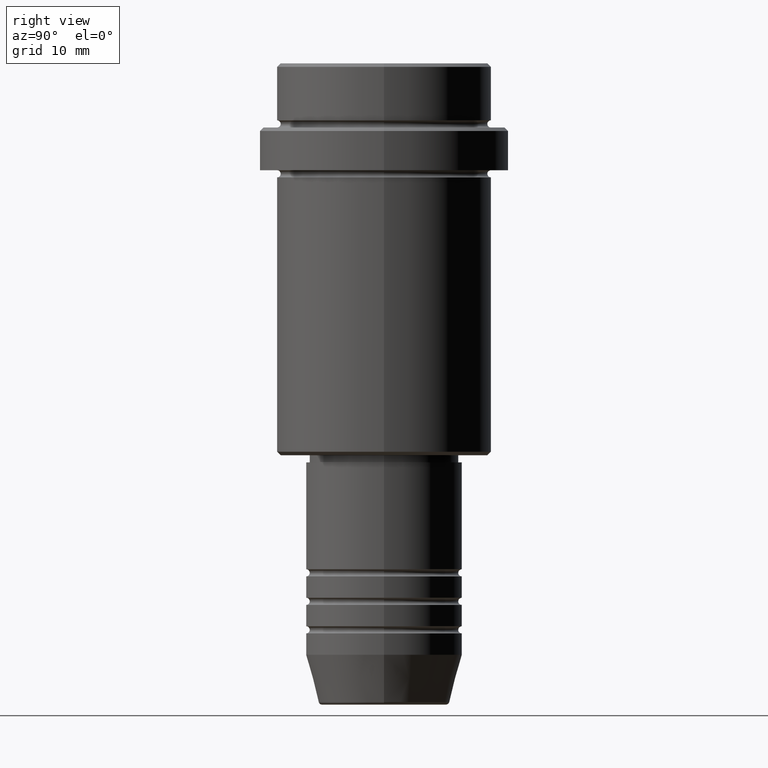
[diagram: clean part render]
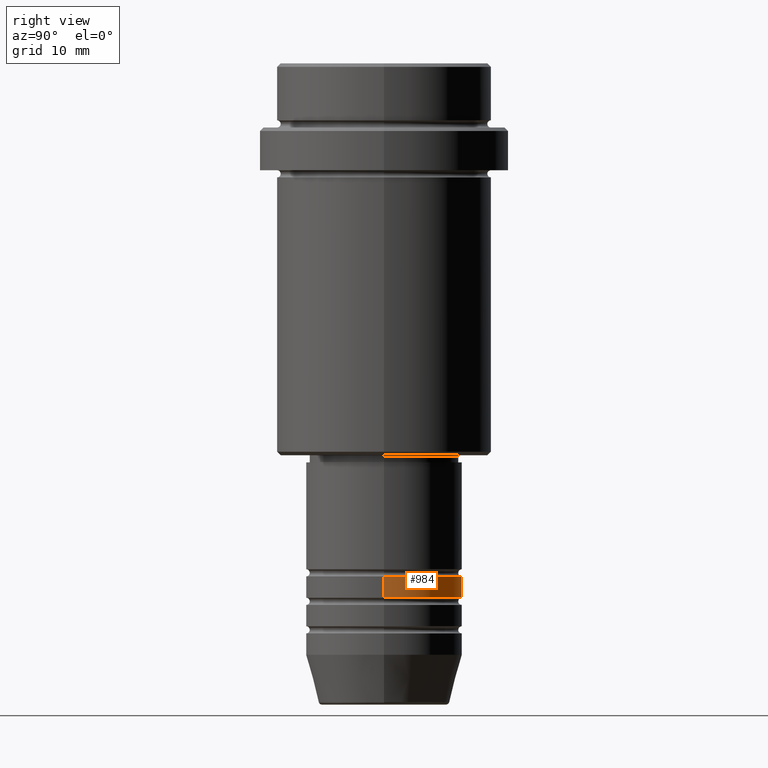
[diagram: same view with one face highlighted and labeled with its STEP entity id]
A machine part, right view. The second image highlights one B-rep face of the part: STEP entity #984.
In plain terms, the highlighted cylindrical surface (partial cylindrical patch) has radius 11 mm, axis along (-0, -0, 1).
Its self-contained STEP definition (entity closure, byte-faithful):
#69 = CARTESIAN_POINT ( 'NONE',  ( 0.000000000000000000, 0.000000000000000000, 0.000000000000000000 ) ) ;
#85 = CIRCLE ( 'NONE', #670, 11.00000000000000000 ) ;
#86 = DIRECTION ( 'NONE',  ( -0.000000000000000000, -0.000000000000000000, 1.000000000000000000 ) ) ;
#132 = VERTEX_POINT ( 'NONE', #948 ) ;
#183 = VERTEX_POINT ( 'NONE', #1317 ) ;
#204 = DIRECTION ( 'NONE',  ( -0.000000000000000000, -0.000000000000000000, 1.000000000000000000 ) ) ;
#212 = ORIENTED_EDGE ( 'NONE', *, *, #734, .T. ) ;
#259 = AXIS2_PLACEMENT_3D ( 'NONE', #1386, #204, #401 ) ;
#273 = DIRECTION ( 'NONE',  ( -0.000000000000000000, -0.000000000000000000, 1.000000000000000000 ) ) ;
#283 = CARTESIAN_POINT ( 'NONE',  ( 0.000000000000000000, 0.000000000000000000, -71.99999999999990052 ) ) ;
#307 = ORIENTED_EDGE ( 'NONE', *, *, #1241, .F. ) ;
#360 = CARTESIAN_POINT ( 'NONE',  ( 11.00000000000000000, 0.000000000000000000, 0.000000000000000000 ) ) ;
#401 = DIRECTION ( 'NONE',  ( 1.000000000000000000, 0.000000000000000000, 0.000000000000000000 ) ) ;
#532 = VECTOR ( 'NONE', #86, 1000.000000000000000 ) ;
#670 = AXIS2_PLACEMENT_3D ( 'NONE', #283, #729, #852 ) ;
#713 = DIRECTION ( 'NONE',  ( 1.000000000000000000, 0.000000000000000000, 0.000000000000000000 ) ) ;
#729 = DIRECTION ( 'NONE',  ( -0.000000000000000000, -0.000000000000000000, 1.000000000000000000 ) ) ;
#734 = EDGE_CURVE ( 'NONE', #1276, #1158, #1081, .T. ) ;
#846 = FACE_OUTER_BOUND ( 'NONE', #916, .T. ) ;
#852 = DIRECTION ( 'NONE',  ( 1.000000000000000000, 0.000000000000000000, 0.000000000000000000 ) ) ;
#868 = CARTESIAN_POINT ( 'NONE',  ( -11.00000000000000000, 1.347111479062088405E-15, 0.000000000000000000 ) ) ;
#916 = EDGE_LOOP ( 'NONE', ( #1302, #212, #1274, #307 ) ) ;
#941 = EDGE_CURVE ( 'NONE', #183, #1158, #85, .T. ) ;
#948 = CARTESIAN_POINT ( 'NONE',  ( 11.00000000000000000, 0.000000000000000000, -74.99999999999990052 ) ) ;
#984 = ADVANCED_FACE ( 'NONE', ( #846 ), #1143, .T. ) ;
#1024 = LINE ( 'NONE', #360, #1144 ) ;
#1046 = CARTESIAN_POINT ( 'NONE',  ( -11.00000000000000000, 1.347111479062088405E-15, -74.99999999999990052 ) ) ;
#1054 = CARTESIAN_POINT ( 'NONE',  ( -11.00000000000000000, 1.347111479062088405E-15, -71.99999999999990052 ) ) ;
#1081 = LINE ( 'NONE', #868, #532 ) ;
#1143 = CYLINDRICAL_SURFACE ( 'NONE', #1193, 11.00000000000000000 ) ;
#1144 = VECTOR ( 'NONE', #273, 1000.000000000000000 ) ;
#1158 = VERTEX_POINT ( 'NONE', #1054 ) ;
#1193 = AXIS2_PLACEMENT_3D ( 'NONE', #69, #1283, #713 ) ;
#1241 = EDGE_CURVE ( 'NONE', #132, #183, #1024, .T. ) ;
#1274 = ORIENTED_EDGE ( 'NONE', *, *, #941, .F. ) ;
#1276 = VERTEX_POINT ( 'NONE', #1046 ) ;
#1283 = DIRECTION ( 'NONE',  ( -0.000000000000000000, -0.000000000000000000, 1.000000000000000000 ) ) ;
#1302 = ORIENTED_EDGE ( 'NONE', *, *, #1396, .T. ) ;
#1314 = CIRCLE ( 'NONE', #259, 11.00000000000000000 ) ;
#1317 = CARTESIAN_POINT ( 'NONE',  ( 11.00000000000000000, 0.000000000000000000, -71.99999999999990052 ) ) ;
#1386 = CARTESIAN_POINT ( 'NONE',  ( 0.000000000000000000, 0.000000000000000000, -74.99999999999990052 ) ) ;
#1396 = EDGE_CURVE ( 'NONE', #132, #1276, #1314, .T. ) ;